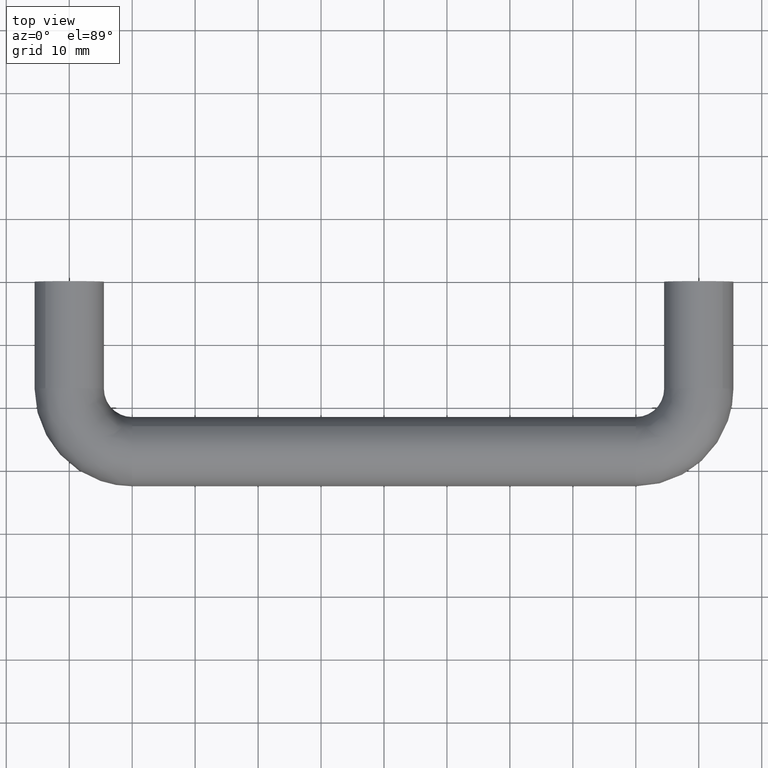
[diagram: clean part render]
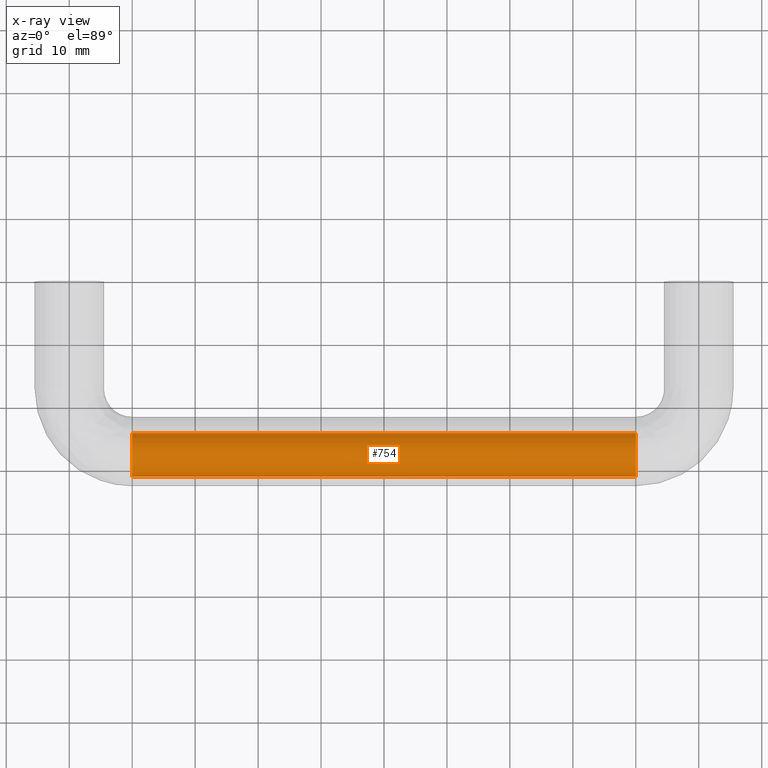
[diagram: x-ray — body ghosted, one internal face saturated and labeled with its STEP entity id]
A machine part, top view, then the same camera in x-ray: the body is ghosted and one INTERNAL B-rep face — a face not visible from any outside direction — is saturated and labeled: STEP entity #754.
In plain terms, the highlighted face is a freeform B-spline surface patch.
Its self-contained STEP definition (entity closure, byte-faithful):
#470=CARTESIAN_POINT('',(89.999987676690907,-30.999999999978751,-4.898425E-016));
#471=VERTEX_POINT('',#470);
#506=CARTESIAN_POINT('',(89.999999153957177,-24.098502695623480,2.753418233525610));
#507=VERTEX_POINT('',#506);
#517=CARTESIAN_POINT('',(90.0,-26.999999999989601,4.0));
#518=VERTEX_POINT('',#517);
#519=CARTESIAN_POINT('',(89.999999153957177,-24.098502695623480,2.753418233525610));
#520=CARTESIAN_POINT('',(89.999999238755436,-24.389330893405880,3.060205532286353));
#521=CARTESIAN_POINT('',(89.999999421197487,-25.015028847618069,3.538457714670686));
#522=CARTESIAN_POINT('',(89.999999718977676,-26.036261018057090,3.924446332992121));
#523=CARTESIAN_POINT('',(89.999999911254235,-26.695655543215679,4.000045770994916));
#524=CARTESIAN_POINT('',(90.0,-26.999999999989601,4.0));
#525=B_SPLINE_CURVE_WITH_KNOTS('',3,(#519,#520,#521,#522,#523,#524),.UNSPECIFIED.,.F.,.U.,(4,1,1,4),(0.000000037462283,1.268106299617625,2.333300310405262,3.246334012727038),.UNSPECIFIED.);
#526=EDGE_CURVE('',#507,#518,#525,.T.);
#528=CARTESIAN_POINT('',(90.0,-26.999999999989601,4.0));
#529=CARTESIAN_POINT('',(89.999999496020109,-27.327252605427550,4.000080922604341));
#530=CARTESIAN_POINT('',(89.999998448275420,-27.932613650081670,3.925270744924895));
#531=CARTESIAN_POINT('',(89.999996498771338,-28.860035174030362,3.587120371819327));
#532=CARTESIAN_POINT('',(89.999994695891232,-29.557918885452541,3.114617996512442));
#533=CARTESIAN_POINT('',(89.999992981263631,-30.104117579827800,2.547720046726341));
#534=CARTESIAN_POINT('',(89.999991571319427,-30.482365804849142,2.010666199768016));
#535=CARTESIAN_POINT('',(89.999989654209699,-30.877798924088651,1.161557721527170));
#536=CARTESIAN_POINT('',(89.999988382071578,-31.000274500312742,0.458190546622307));
#537=CARTESIAN_POINT('',(89.999987676690907,-30.999999999978751,-4.898425E-016));
#538=B_SPLINE_CURVE_WITH_KNOTS('',3,(#528,#529,#530,#531,#532,#533,#534,#535,#536,#537),.UNSPECIFIED.,.F.,.U.,(4,1,1,1,1,1,1,4),(0.000000131871351,0.981739382492676,1.816248070305799,2.945296984606612,3.485211907977198,4.172443687676792,4.908772990071733,6.283224731519196),.UNSPECIFIED.);
#539=EDGE_CURVE('',#518,#471,#538,.T.);
#574=CARTESIAN_POINT('',(89.999989368953905,-29.901497174610721,-2.753418111646778));
#575=VERTEX_POINT('',#574);
#576=CARTESIAN_POINT('',(89.999987676690907,-30.999999999978751,-4.898425E-016));
#577=CARTESIAN_POINT('',(89.999987676520135,-31.000118684310682,-0.363804267421001));
#578=CARTESIAN_POINT('',(89.999987807278558,-30.915247866085181,-0.980599983833710));
#579=CARTESIAN_POINT('',(89.999988370492431,-30.549648148275288,-1.929477368196451));
#580=CARTESIAN_POINT('',(89.999988949400915,-30.173851196842200,-2.466700254136700));
#581=CARTESIAN_POINT('',(89.999989368953905,-29.901497174610721,-2.753418111646778));
#582=B_SPLINE_CURVE_WITH_KNOTS('',3,(#576,#577,#578,#579,#580,#581),.UNSPECIFIED.,.F.,.U.,(4,1,1,4),(0.000000030343635,1.091384922302687,1.850602729407066,3.036890643645219),.UNSPECIFIED.);
#583=EDGE_CURVE('',#471,#575,#582,.T.);
#637=CARTESIAN_POINT('',(10.000010625703190,-29.901497304665170,-2.753418233194543));
#638=VERTEX_POINT('',#637);
#639=CARTESIAN_POINT('',(10.000010625703190,-29.901497304665170,-2.753418233194543));
#640=CARTESIAN_POINT('',(89.999989368958040,-29.901497174610761,-2.753418111646733));
#641=QUASI_UNIFORM_CURVE('',1,(#639,#640),.UNSPECIFIED.,.F.,.U.);
#642=EDGE_CURVE('',#638,#575,#641,.T.);
#672=CARTESIAN_POINT('',(10.000001854677009,-24.098502695615910,2.753418233517844));
#673=VERTEX_POINT('',#672);
#683=CARTESIAN_POINT('',(10.000001854677009,-24.098502695615910,2.753418233517844));
#684=CARTESIAN_POINT('',(90.000000000086516,-24.098502566505200,2.753418356059145));
#685=QUASI_UNIFORM_CURVE('',1,(#683,#684),.UNSPECIFIED.,.F.,.U.);
#686=EDGE_CURVE('',#673,#507,#685,.T.);
#693=CARTESIAN_POINT('',(7.999999999995826,-24.098502515940449,2.753418302775015));
#694=CARTESIAN_POINT('',(7.999999999995826,-26.851920818715467,5.654915786824165));
#695=CARTESIAN_POINT('',(7.999999999995826,-29.753418302764612,2.901497484049150));
#696=CARTESIAN_POINT('',(7.999999999995826,-32.654915786813753,0.148079181274134));
#697=CARTESIAN_POINT('',(7.999999999995826,-29.901497484038750,-2.753418302775015));
#698=CARTESIAN_POINT('',(92.050000000171138,-24.098502515940449,2.753418302775015));
#699=CARTESIAN_POINT('',(92.050000000171138,-26.851920818715467,5.654915786824165));
#700=CARTESIAN_POINT('',(92.050000000171138,-29.753418302764612,2.901497484049150));
#701=CARTESIAN_POINT('',(92.050000000171138,-32.654915786813753,0.148079181274134));
#702=CARTESIAN_POINT('',(92.050000000171138,-29.901497484038750,-2.753418302775015));
#710=(BOUNDED_SURFACE()B_SPLINE_SURFACE(2,1,((#693,#698),(#694,#699),(#695,#700),(#696,#701),(#697,#702)),.UNSPECIFIED.,.F.,.F.,.U.)B_SPLINE_SURFACE_WITH_KNOTS((3,2,3),(2,2),(0.0,6.627416997969519,13.254833995939039),(0.0,84.050000000175316),.UNSPECIFIED.)GEOMETRIC_REPRESENTATION_ITEM()RATIONAL_B_SPLINE_SURFACE(((1.0,1.0),(0.707106781186548,0.707106781186548),(1.0,1.0),(0.707106781186548,0.707106781186548),(1.0,1.0)))REPRESENTATION_ITEM('')SURFACE());
#711=ORIENTED_EDGE('',*,*,#583,.F.);
#712=ORIENTED_EDGE('',*,*,#539,.F.);
#713=ORIENTED_EDGE('',*,*,#526,.F.);
#714=ORIENTED_EDGE('',*,*,#686,.F.);
#715=CARTESIAN_POINT('',(10.0,-26.999999999989601,4.0));
#716=VERTEX_POINT('',#715);
#717=CARTESIAN_POINT('',(10.000001854677009,-24.098502695615910,2.753418233517844));
#718=CARTESIAN_POINT('',(10.000001684710689,-24.331210102643261,2.998787704141829));
#719=CARTESIAN_POINT('',(10.000001409148190,-24.727360580718500,3.322060461944834));
#720=CARTESIAN_POINT('',(10.000000949932771,-25.428224520897938,3.700018398573672));
#721=CARTESIAN_POINT('',(10.000000506203129,-26.137712052414852,3.937787995537810));
#722=CARTESIAN_POINT('',(10.000000165706430,-26.712564097088340,4.000038076214784));
#723=CARTESIAN_POINT('',(10.0,-26.999999999989601,4.0));
#724=B_SPLINE_CURVE_WITH_KNOTS('',3,(#717,#718,#719,#720,#721,#722,#723),.UNSPECIFIED.,.F.,.U.,(4,1,1,1,4),(0.000000037461883,1.014481829992434,1.521731395802827,2.384025835687242,3.246334012738390),.UNSPECIFIED.);
#725=EDGE_CURVE('',#673,#716,#724,.T.);
#726=ORIENTED_EDGE('',*,*,#725,.T.);
#727=CARTESIAN_POINT('',(10.000015270246120,-30.999999999972939,-4.898425E-016));
#728=VERTEX_POINT('',#727);
#729=CARTESIAN_POINT('',(10.0,-26.999999999989601,4.0));
#730=CARTESIAN_POINT('',(10.000000780491121,-27.409086575324601,4.000191458017611));
#731=CARTESIAN_POINT('',(10.000002223263550,-28.063455420318121,3.898699588086453));
#732=CARTESIAN_POINT('',(10.000004441909139,-28.881125467340951,3.554033099997154));
#733=CARTESIAN_POINT('',(10.000006176710521,-29.431750226948719,3.195804706205429));
#734=CARTESIAN_POINT('',(10.000008033193581,-29.944943056170459,2.736396103156163));
#735=CARTESIAN_POINT('',(10.000010238694840,-30.455093412109360,2.091096099726702));
#736=CARTESIAN_POINT('',(10.000012870843751,-30.888269211432309,1.145303134839937));
#737=CARTESIAN_POINT('',(10.000014520962971,-31.000171347641508,0.392716883488505));
#738=CARTESIAN_POINT('',(10.000015270246120,-30.999999999972939,-4.898425E-016));
#739=B_SPLINE_CURVE_WITH_KNOTS('',3,(#729,#730,#731,#732,#733,#734,#735,#736,#737,#738),.UNSPECIFIED.,.F.,.U.,(4,1,1,1,1,1,1,4),(0.000000131869516,1.227189863410392,1.963514664983225,2.650739693997686,3.190660005049129,4.025171048175208,5.105123399308737,6.283224731523305),.UNSPECIFIED.);
#740=EDGE_CURVE('',#716,#728,#739,.T.);
#741=ORIENTED_EDGE('',*,*,#740,.T.);
#742=CARTESIAN_POINT('',(10.000015270246120,-30.999999999972939,-4.898425E-016));
#743=CARTESIAN_POINT('',(10.000014943702320,-31.000085246231642,-0.332167910676955));
#744=CARTESIAN_POINT('',(10.000014257780331,-30.928640900273130,-0.901526481978930));
#745=CARTESIAN_POINT('',(10.000012720598541,-30.591586953065239,-1.860332118463365));
#746=CARTESIAN_POINT('',(10.000011479363350,-30.206614016680842,-2.432342818239639));
#747=CARTESIAN_POINT('',(10.000010625703190,-29.901497304665170,-2.753418233194543));
#748=B_SPLINE_CURVE_WITH_KNOTS('',3,(#742,#743,#744,#745,#746,#747),.UNSPECIFIED.,.F.,.U.,(4,1,1,4),(0.000000030347683,0.996483668849443,1.708239180020788,3.036890709863497),.UNSPECIFIED.);
#749=EDGE_CURVE('',#728,#638,#748,.T.);
#750=ORIENTED_EDGE('',*,*,#749,.T.);
#751=ORIENTED_EDGE('',*,*,#642,.T.);
#752=EDGE_LOOP('',(#711,#712,#713,#714,#726,#741,#750,#751));
#753=FACE_OUTER_BOUND('',#752,.T.);
#754=ADVANCED_FACE('',(#753),#710,.T.);